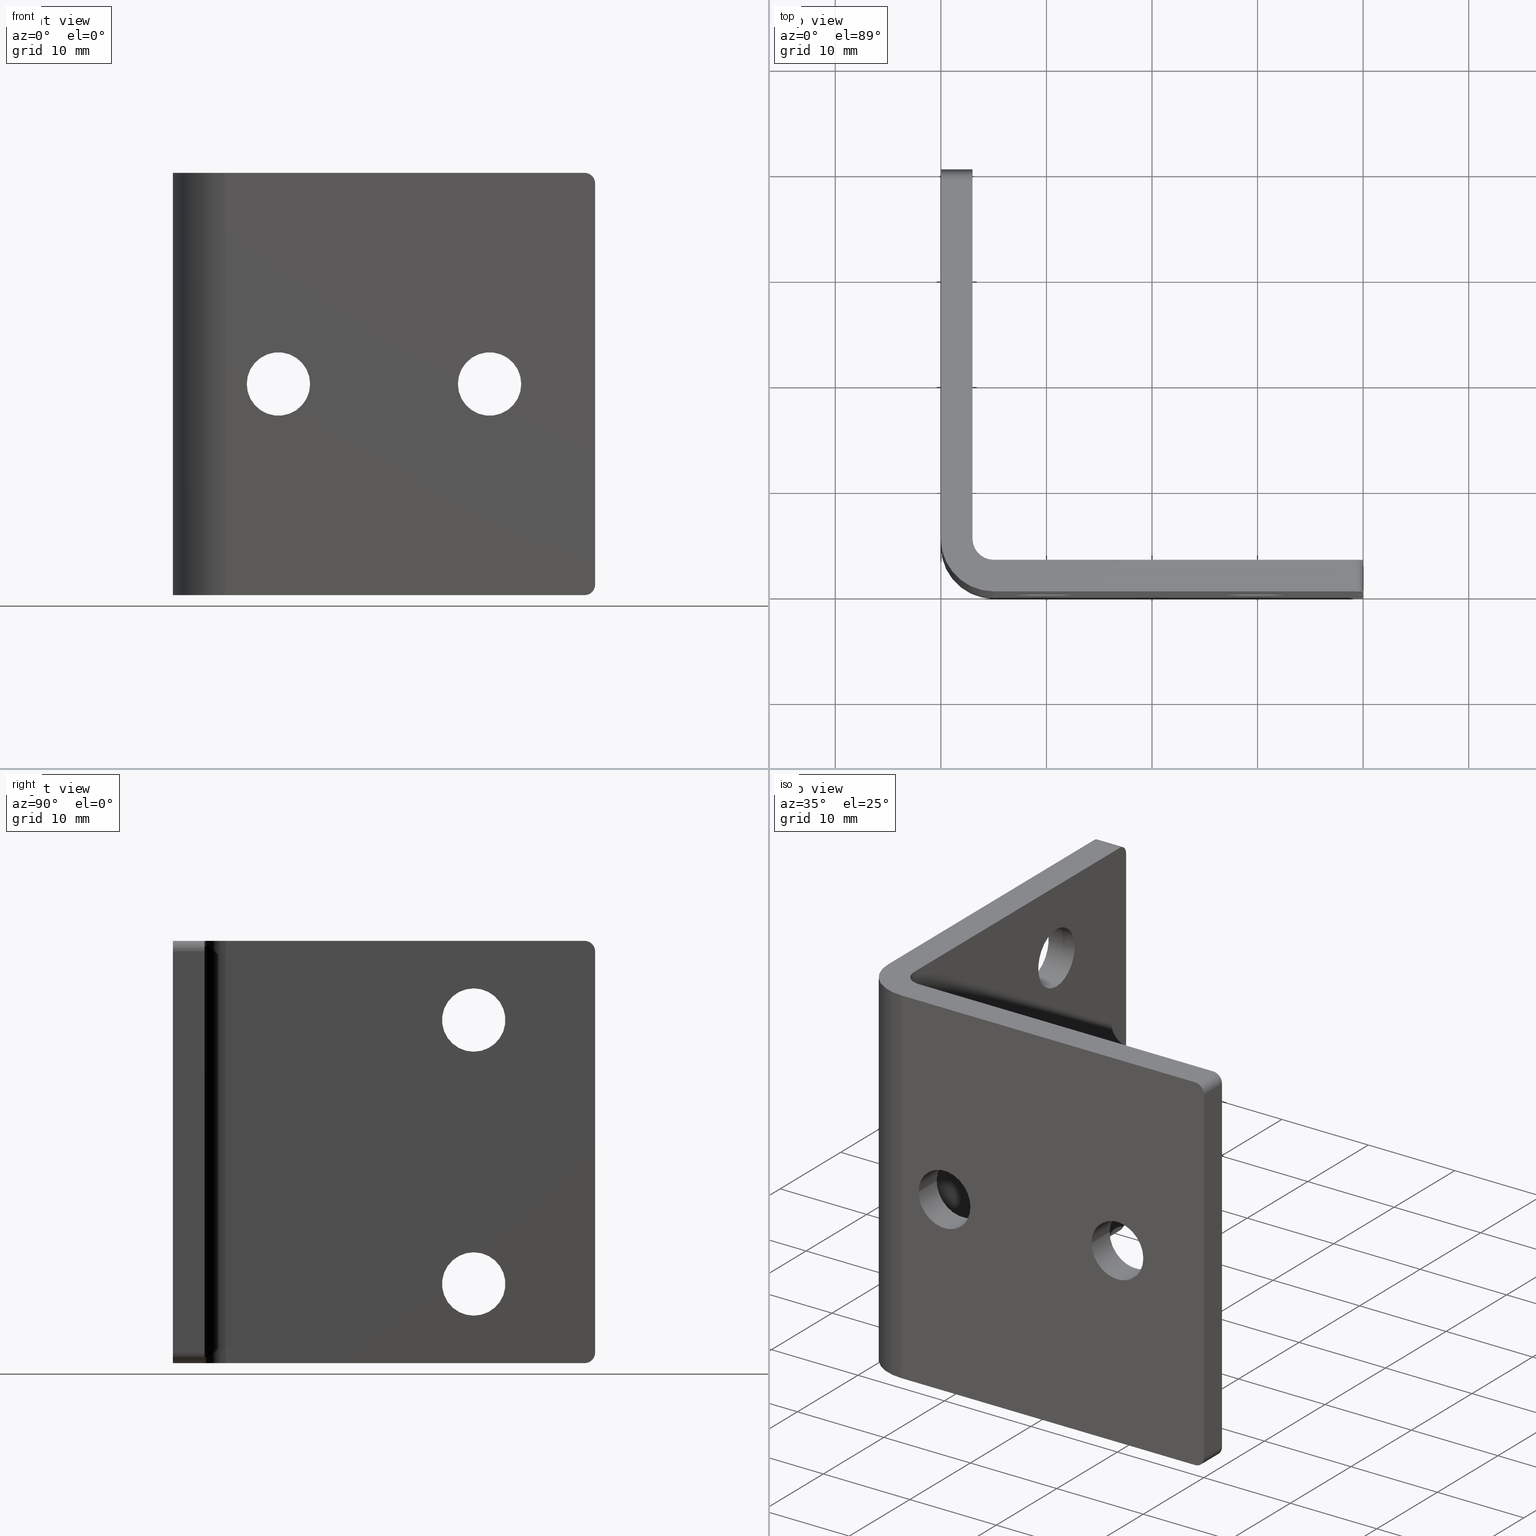
[diagram: canonical four-view strip — front | top / right | iso, engineering-drawing reading convention]
A machine part, canonical four-view strip (front | top / right | iso — engineering-drawing reading convention). The complete STEP part file that produces these views, byte-faithful:
ISO-10303-21;
HEADER;
/****************************************************************
 * Generated by software with PDE/Lib inside                    *
 * PDElib Version v4.4, created Mon 02/23/2004                  *
 * International Technegroup Inc. (www.iti-oh.com)              *
 ****************************************************************/
FILE_DESCRIPTION(('STEP AP203'),'2;1');
FILE_NAME('27.212.00.stp','2011-02-14T10:22:29',(''),(''),'2009.3.110','THINKDESIGN','');
FILE_SCHEMA(('CONFIG_CONTROL_DESIGN'));
ENDSEC;
DATA;
#2=CARTESIAN_POINT('',(-36.999999989999999,28.499999999999996,12.500000000000000));
#3=DIRECTION('',(-1.0,0.0,0.0));
#4=DIRECTION('',(0.0,1.0,0.0));
#5=AXIS2_PLACEMENT_3D('',#2,#3,#4);
#6=CYLINDRICAL_SURFACE('',#5,3.0);
#7=CARTESIAN_POINT('',(-36.999999999999986,28.500000000000000,9.500000000000004));
#8=VERTEX_POINT('',#7);
#9=CARTESIAN_POINT('',(-36.999999999999986,28.500000000000000,15.500000000000000));
#10=VERTEX_POINT('',#9);
#11=CARTESIAN_POINT('',(-36.999999999999986,28.500000000000000,12.500000000000000));
#12=DIRECTION('',(-1.0,0.0,0.0));
#13=DIRECTION('',(0.0,0.0,1.0));
#14=AXIS2_PLACEMENT_3D('',#11,#12,#13);
#15=CIRCLE('',#14,3.0);
#16=EDGE_CURVE('',#8,#10,#15,.T.);
#17=ORIENTED_EDGE('',*,*,#16,.F.);
#18=CARTESIAN_POINT('',(-39.999999999999986,28.500000000000000,9.500000000000004));
#19=VERTEX_POINT('',#18);
#20=CARTESIAN_POINT('',(-36.999999999999993,28.500000000000000,9.500000000000004));
#21=DIRECTION('',(-1.0,0.0,0.0));
#22=VECTOR('',#21,2.999999999999993);
#23=LINE('',#20,#22);
#24=EDGE_CURVE('',#8,#19,#23,.T.);
#25=ORIENTED_EDGE('',*,*,#24,.T.);
#26=CARTESIAN_POINT('',(-39.999999999999986,28.500000000000000,15.500000000000000));
#27=VERTEX_POINT('',#26);
#28=CARTESIAN_POINT('',(-39.999999999999986,28.500000000000000,12.500000000000000));
#29=DIRECTION('',(-1.0,0.0,0.0));
#30=DIRECTION('',(0.0,1.0,0.0));
#31=AXIS2_PLACEMENT_3D('',#28,#29,#30);
#32=CIRCLE('',#31,2.999999999999999);
#33=EDGE_CURVE('',#19,#27,#32,.T.);
#34=ORIENTED_EDGE('',*,*,#33,.T.);
#35=CARTESIAN_POINT('',(-36.999999999999993,28.500000000000000,15.500000000000000));
#36=DIRECTION('',(-1.0,0.0,0.0));
#37=VECTOR('',#36,2.999999999999993);
#38=LINE('',#35,#37);
#39=EDGE_CURVE('',#10,#27,#38,.T.);
#40=ORIENTED_EDGE('',*,*,#39,.F.);
#41=EDGE_LOOP('',(#17,#25,#34,#40));
#42=FACE_OUTER_BOUND('',#41,.T.);
#43=ADVANCED_FACE('',(#42),#6,.F.);
#44=CARTESIAN_POINT('',(-36.999999989999999,28.500000000000000,-12.500000000000000));
#45=DIRECTION('',(-1.0,0.0,0.0));
#46=DIRECTION('',(0.0,1.0,0.0));
#47=AXIS2_PLACEMENT_3D('',#44,#45,#46);
#48=CYLINDRICAL_SURFACE('',#47,2.999999999999999);
#49=CARTESIAN_POINT('',(-36.999999999999986,28.500000000000000,-15.500000000000014));
#50=VERTEX_POINT('',#49);
#51=CARTESIAN_POINT('',(-36.999999999999986,28.500000000000000,-9.500000000000011));
#52=VERTEX_POINT('',#51);
#53=CARTESIAN_POINT('',(-36.999999999999986,28.500000000000000,-12.500000000000000));
#54=DIRECTION('',(-1.0,0.0,0.0));
#55=DIRECTION('',(0.0,0.0,1.0));
#56=AXIS2_PLACEMENT_3D('',#53,#54,#55);
#57=CIRCLE('',#56,2.999999999999999);
#58=EDGE_CURVE('',#50,#52,#57,.T.);
#59=ORIENTED_EDGE('',*,*,#58,.F.);
#60=CARTESIAN_POINT('',(-39.999999999999986,28.500000000000000,-15.500000000000014));
#61=VERTEX_POINT('',#60);
#62=CARTESIAN_POINT('',(-36.999999999999993,28.500000000000000,-15.500000000000014));
#63=DIRECTION('',(-1.0,0.0,0.0));
#64=VECTOR('',#63,2.999999999999993);
#65=LINE('',#62,#64);
#66=EDGE_CURVE('',#50,#61,#65,.T.);
#67=ORIENTED_EDGE('',*,*,#66,.T.);
#68=CARTESIAN_POINT('',(-39.999999999999986,28.500000000000000,-9.500000000000011));
#69=VERTEX_POINT('',#68);
#70=CARTESIAN_POINT('',(-39.999999999999986,28.500000000000000,-12.500000000000000));
#71=DIRECTION('',(-1.0,0.0,0.0));
#72=DIRECTION('',(0.0,1.0,0.0));
#73=AXIS2_PLACEMENT_3D('',#70,#71,#72);
#74=CIRCLE('',#73,2.999999999999999);
#75=EDGE_CURVE('',#61,#69,#74,.T.);
#76=ORIENTED_EDGE('',*,*,#75,.T.);
#77=CARTESIAN_POINT('',(-36.999999999999993,28.500000000000000,-9.500000000000011));
#78=DIRECTION('',(-1.0,0.0,0.0));
#79=VECTOR('',#78,2.999999999999993);
#80=LINE('',#77,#79);
#81=EDGE_CURVE('',#52,#69,#80,.T.);
#82=ORIENTED_EDGE('',*,*,#81,.F.);
#83=EDGE_LOOP('',(#59,#67,#76,#82));
#84=FACE_OUTER_BOUND('',#83,.T.);
#85=ADVANCED_FACE('',(#84),#48,.F.);
#86=CARTESIAN_POINT('',(-29.999999999999979,3.000000009999989,0.0));
#87=DIRECTION('',(0.0,-1.0,0.0));
#88=DIRECTION('',(0.0,0.0,-1.0));
#89=AXIS2_PLACEMENT_3D('',#86,#87,#88);
#90=CYLINDRICAL_SURFACE('',#89,3.000000000000002);
#91=CARTESIAN_POINT('',(-26.999999999999993,2.999999999999989,0.0));
#92=VERTEX_POINT('',#91);
#93=CARTESIAN_POINT('',(-33.0,2.999999999999989,0.0));
#94=VERTEX_POINT('',#93);
#95=CARTESIAN_POINT('',(-29.999999999999986,2.999999999999989,0.0));
#96=DIRECTION('',(0.0,-1.0,0.0));
#97=DIRECTION('',(-1.0,0.0,0.0));
#98=AXIS2_PLACEMENT_3D('',#95,#96,#97);
#99=CIRCLE('',#98,3.000000000000002);
#100=EDGE_CURVE('',#92,#94,#99,.T.);
#101=ORIENTED_EDGE('',*,*,#100,.F.);
#102=CARTESIAN_POINT('',(-26.999999999999993,-7.105427E-015,0.0));
#103=VERTEX_POINT('',#102);
#104=CARTESIAN_POINT('',(-26.999999999999993,2.999999999999989,0.0));
#105=DIRECTION('',(0.0,-1.0,0.0));
#106=VECTOR('',#105,2.999999999999996);
#107=LINE('',#104,#106);
#108=EDGE_CURVE('',#92,#103,#107,.T.);
#109=ORIENTED_EDGE('',*,*,#108,.T.);
#110=CARTESIAN_POINT('',(-33.0,-7.105427E-015,0.0));
#111=VERTEX_POINT('',#110);
#112=CARTESIAN_POINT('',(-29.999999999999986,-7.105427E-015,0.0));
#113=DIRECTION('',(0.0,1.0,0.0));
#114=DIRECTION('',(-1.0,0.0,0.0));
#115=AXIS2_PLACEMENT_3D('',#112,#113,#114);
#116=CIRCLE('',#115,3.000000000000002);
#117=EDGE_CURVE('',#111,#103,#116,.T.);
#118=ORIENTED_EDGE('',*,*,#117,.F.);
#119=CARTESIAN_POINT('',(-33.0,2.999999999999989,0.0));
#120=DIRECTION('',(0.0,-1.0,0.0));
#121=VECTOR('',#120,2.999999999999996);
#122=LINE('',#119,#121);
#123=EDGE_CURVE('',#94,#111,#122,.T.);
#124=ORIENTED_EDGE('',*,*,#123,.F.);
#125=EDGE_LOOP('',(#101,#109,#118,#124));
#126=FACE_OUTER_BOUND('',#125,.T.);
#127=ADVANCED_FACE('',(#126),#90,.F.);
#128=CARTESIAN_POINT('',(-10.000000000000002,3.000000009999993,0.0));
#129=DIRECTION('',(0.0,-1.0,0.0));
#130=DIRECTION('',(0.0,0.0,-1.0));
#131=AXIS2_PLACEMENT_3D('',#128,#129,#130);
#132=CYLINDRICAL_SURFACE('',#131,2.999999999999999);
#133=CARTESIAN_POINT('',(-7.000000000000004,2.999999999999993,0.0));
#134=VERTEX_POINT('',#133);
#135=CARTESIAN_POINT('',(-12.999999999999998,2.999999999999993,0.0));
#136=VERTEX_POINT('',#135);
#137=CARTESIAN_POINT('',(-10.0,2.999999999999993,0.0));
#138=DIRECTION('',(0.0,-1.0,0.0));
#139=DIRECTION('',(-1.0,0.0,0.0));
#140=AXIS2_PLACEMENT_3D('',#137,#138,#139);
#141=CIRCLE('',#140,2.999999999999999);
#142=EDGE_CURVE('',#134,#136,#141,.T.);
#143=ORIENTED_EDGE('',*,*,#142,.F.);
#144=CARTESIAN_POINT('',(-7.000000000000004,0.0,0.0));
#145=VERTEX_POINT('',#144);
#146=CARTESIAN_POINT('',(-7.000000000000004,2.999999999999993,0.0));
#147=DIRECTION('',(0.0,-1.0,0.0));
#148=VECTOR('',#147,2.999999999999993);
#149=LINE('',#146,#148);
#150=EDGE_CURVE('',#134,#145,#149,.T.);
#151=ORIENTED_EDGE('',*,*,#150,.T.);
#152=CARTESIAN_POINT('',(-12.999999999999998,0.0,0.0));
#153=VERTEX_POINT('',#152);
#154=CARTESIAN_POINT('',(-10.0,0.0,0.0));
#155=DIRECTION('',(0.0,1.0,0.0));
#156=DIRECTION('',(-1.0,0.0,0.0));
#157=AXIS2_PLACEMENT_3D('',#154,#155,#156);
#158=CIRCLE('',#157,2.999999999999999);
#159=EDGE_CURVE('',#153,#145,#158,.T.);
#160=ORIENTED_EDGE('',*,*,#159,.F.);
#161=CARTESIAN_POINT('',(-12.999999999999998,2.999999999999993,0.0));
#162=DIRECTION('',(0.0,-1.0,0.0));
#163=VECTOR('',#162,2.999999999999993);
#164=LINE('',#161,#163);
#165=EDGE_CURVE('',#136,#153,#164,.T.);
#166=ORIENTED_EDGE('',*,*,#165,.F.);
#167=EDGE_LOOP('',(#143,#151,#160,#166));
#168=FACE_OUTER_BOUND('',#167,.T.);
#169=ADVANCED_FACE('',(#168),#132,.F.);
#170=CARTESIAN_POINT('',(-36.999999999999986,3.249999999999993,-22.0));
#171=DIRECTION('',(-1.0,0.0,0.0));
#172=DIRECTION('',(0.0,0.0,1.0));
#173=AXIS2_PLACEMENT_3D('',#170,#171,#172);
#174=PLANE('',#173);
#175=CARTESIAN_POINT('',(-36.999999999999986,39.0,20.0));
#176=VERTEX_POINT('',#175);
#177=CARTESIAN_POINT('',(-36.999999999999986,4.999999999999996,20.0));
#178=VERTEX_POINT('',#177);
#179=CARTESIAN_POINT('',(-36.999999999999986,39.0,20.0));
#180=DIRECTION('',(0.0,-1.0,0.0));
#181=VECTOR('',#180,34.0);
#182=LINE('',#179,#181);
#183=EDGE_CURVE('',#176,#178,#182,.T.);
#184=ORIENTED_EDGE('',*,*,#183,.T.);
#185=CARTESIAN_POINT('',(-36.999999999999986,4.999999999999996,-20.0));
#186=VERTEX_POINT('',#185);
#187=CARTESIAN_POINT('',(-36.999999999999986,4.999999999999993,20.0));
#188=DIRECTION('',(0.0,0.0,-1.0));
#189=VECTOR('',#188,40.0);
#190=LINE('',#187,#189);
#191=EDGE_CURVE('',#178,#186,#190,.T.);
#192=ORIENTED_EDGE('',*,*,#191,.T.);
#193=CARTESIAN_POINT('',(-36.999999999999986,39.0,-20.0));
#194=VERTEX_POINT('',#193);
#195=CARTESIAN_POINT('',(-36.999999999999986,39.0,-20.0));
#196=DIRECTION('',(0.0,-1.0,0.0));
#197=VECTOR('',#196,34.0);
#198=LINE('',#195,#197);
#199=EDGE_CURVE('',#194,#186,#198,.T.);
#200=ORIENTED_EDGE('',*,*,#199,.F.);
#201=CARTESIAN_POINT('',(-36.999999999999986,40.0,-19.0));
#202=VERTEX_POINT('',#201);
#203=CARTESIAN_POINT('',(-36.999999999999986,39.0,-19.0));
#204=DIRECTION('',(1.0,0.0,0.0));
#205=DIRECTION('',(0.0,0.0,1.0));
#206=AXIS2_PLACEMENT_3D('',#203,#204,#205);
#207=CIRCLE('',#206,1.000000000000001);
#208=EDGE_CURVE('',#194,#202,#207,.T.);
#209=ORIENTED_EDGE('',*,*,#208,.T.);
#210=CARTESIAN_POINT('',(-36.999999999999986,40.0,19.0));
#211=VERTEX_POINT('',#210);
#212=CARTESIAN_POINT('',(-36.999999999999986,40.0,-19.0));
#213=DIRECTION('',(0.0,0.0,1.0));
#214=VECTOR('',#213,38.0);
#215=LINE('',#212,#214);
#216=EDGE_CURVE('',#202,#211,#215,.T.);
#217=ORIENTED_EDGE('',*,*,#216,.T.);
#218=CARTESIAN_POINT('',(-36.999999999999986,39.0,19.0));
#219=DIRECTION('',(1.0,0.0,0.0));
#220=DIRECTION('',(0.0,0.0,1.0));
#221=AXIS2_PLACEMENT_3D('',#218,#219,#220);
#222=CIRCLE('',#221,1.0);
#223=EDGE_CURVE('',#211,#176,#222,.T.);
#224=ORIENTED_EDGE('',*,*,#223,.T.);
#225=EDGE_LOOP('',(#184,#192,#200,#209,#217,#224));
#226=FACE_OUTER_BOUND('',#225,.T.);
#227=CARTESIAN_POINT('',(-36.999999999999986,28.500000000000000,-12.500000000000000));
#228=DIRECTION('',(-1.0,0.0,0.0));
#229=DIRECTION('',(0.0,0.0,1.0));
#230=AXIS2_PLACEMENT_3D('',#227,#228,#229);
#231=CIRCLE('',#230,2.999999999999999);
#232=EDGE_CURVE('',#52,#50,#231,.T.);
#233=ORIENTED_EDGE('',*,*,#232,.T.);
#234=ORIENTED_EDGE('',*,*,#58,.T.);
#235=EDGE_LOOP('',(#233,#234));
#236=FACE_BOUND('',#235,.T.);
#237=CARTESIAN_POINT('',(-36.999999999999986,28.500000000000000,12.500000000000000));
#238=DIRECTION('',(-1.0,0.0,0.0));
#239=DIRECTION('',(0.0,0.0,1.0));
#240=AXIS2_PLACEMENT_3D('',#237,#238,#239);
#241=CIRCLE('',#240,3.0);
#242=EDGE_CURVE('',#10,#8,#241,.T.);
#243=ORIENTED_EDGE('',*,*,#242,.T.);
#244=ORIENTED_EDGE('',*,*,#16,.T.);
#245=EDGE_LOOP('',(#243,#244));
#246=FACE_BOUND('',#245,.T.);
#247=ADVANCED_FACE('',(#226,#236,#246),#174,.F.);
#248=CARTESIAN_POINT('',(-36.749999999999986,2.999999999999993,-22.0));
#249=DIRECTION('',(0.0,-1.0,0.0));
#250=DIRECTION('',(1.0,0.0,0.0));
#251=AXIS2_PLACEMENT_3D('',#248,#249,#250);
#252=PLANE('',#251);
#253=CARTESIAN_POINT('',(-34.999999999999986,2.999999999999993,-20.0));
#254=VERTEX_POINT('',#253);
#255=CARTESIAN_POINT('',(-0.999999999999995,3.0,-20.0));
#256=VERTEX_POINT('',#255);
#257=CARTESIAN_POINT('',(-34.999999999999986,2.999999999999993,-20.0));
#258=DIRECTION('',(1.0,0.0,0.0));
#259=VECTOR('',#258,33.999999999999993);
#260=LINE('',#257,#259);
#261=EDGE_CURVE('',#254,#256,#260,.T.);
#262=ORIENTED_EDGE('',*,*,#261,.F.);
#263=CARTESIAN_POINT('',(-34.999999999999986,2.999999999999993,20.0));
#264=VERTEX_POINT('',#263);
#265=CARTESIAN_POINT('',(-34.999999999999986,2.999999999999993,-20.0));
#266=DIRECTION('',(0.0,0.0,1.0));
#267=VECTOR('',#266,40.0);
#268=LINE('',#265,#267);
#269=EDGE_CURVE('',#254,#264,#268,.T.);
#270=ORIENTED_EDGE('',*,*,#269,.T.);
#271=CARTESIAN_POINT('',(-0.999999999999995,3.0,20.0));
#272=VERTEX_POINT('',#271);
#273=CARTESIAN_POINT('',(-34.999999999999986,2.999999999999993,20.0));
#274=DIRECTION('',(1.0,0.0,0.0));
#275=VECTOR('',#274,33.999999999999993);
#276=LINE('',#273,#275);
#277=EDGE_CURVE('',#264,#272,#276,.T.);
#278=ORIENTED_EDGE('',*,*,#277,.T.);
#279=CARTESIAN_POINT('',(3.552714E-015,3.0,19.0));
#280=VERTEX_POINT('',#279);
#281=CARTESIAN_POINT('',(-0.999999999999995,3.0,19.0));
#282=DIRECTION('',(0.0,1.0,0.0));
#283=DIRECTION('',(1.0,0.0,0.0));
#284=AXIS2_PLACEMENT_3D('',#281,#282,#283);
#285=CIRCLE('',#284,1.0);
#286=EDGE_CURVE('',#272,#280,#285,.T.);
#287=ORIENTED_EDGE('',*,*,#286,.T.);
#288=CARTESIAN_POINT('',(3.552714E-015,3.0,-19.0));
#289=VERTEX_POINT('',#288);
#290=CARTESIAN_POINT('',(3.552714E-015,3.0,-19.0));
#291=DIRECTION('',(0.0,0.0,1.0));
#292=VECTOR('',#291,38.0);
#293=LINE('',#290,#292);
#294=EDGE_CURVE('',#289,#280,#293,.T.);
#295=ORIENTED_EDGE('',*,*,#294,.F.);
#296=CARTESIAN_POINT('',(-0.999999999999993,3.0,-19.0));
#297=DIRECTION('',(0.0,1.0,0.0));
#298=DIRECTION('',(1.0,0.0,0.0));
#299=AXIS2_PLACEMENT_3D('',#296,#297,#298);
#300=CIRCLE('',#299,1.0);
#301=EDGE_CURVE('',#289,#256,#300,.T.);
#302=ORIENTED_EDGE('',*,*,#301,.T.);
#303=EDGE_LOOP('',(#262,#270,#278,#287,#295,#302));
#304=FACE_OUTER_BOUND('',#303,.T.);
#305=CARTESIAN_POINT('',(-10.0,2.999999999999993,0.0));
#306=DIRECTION('',(0.0,-1.0,0.0));
#307=DIRECTION('',(-1.0,0.0,0.0));
#308=AXIS2_PLACEMENT_3D('',#305,#306,#307);
#309=CIRCLE('',#308,2.999999999999999);
#310=EDGE_CURVE('',#136,#134,#309,.T.);
#311=ORIENTED_EDGE('',*,*,#310,.T.);
#312=ORIENTED_EDGE('',*,*,#142,.T.);
#313=EDGE_LOOP('',(#311,#312));
#314=FACE_BOUND('',#313,.T.);
#315=CARTESIAN_POINT('',(-29.999999999999986,2.999999999999989,0.0));
#316=DIRECTION('',(0.0,-1.0,0.0));
#317=DIRECTION('',(-1.0,0.0,0.0));
#318=AXIS2_PLACEMENT_3D('',#315,#316,#317);
#319=CIRCLE('',#318,3.000000000000002);
#320=EDGE_CURVE('',#94,#92,#319,.T.);
#321=ORIENTED_EDGE('',*,*,#320,.T.);
#322=ORIENTED_EDGE('',*,*,#100,.T.);
#323=EDGE_LOOP('',(#321,#322));
#324=FACE_BOUND('',#323,.T.);
#325=ADVANCED_FACE('',(#304,#314,#324),#252,.F.);
#326=CARTESIAN_POINT('',(0.0,3.149999999999999,-20.899999999999999));
#327=DIRECTION('',(-1.0,0.0,0.0));
#328=DIRECTION('',(0.0,-1.0,0.0));
#329=AXIS2_PLACEMENT_3D('',#326,#327,#328);
#330=PLANE('',#329);
#331=ORIENTED_EDGE('',*,*,#294,.T.);
#332=CARTESIAN_POINT('',(0.0,0.0,19.0));
#333=VERTEX_POINT('',#332);
#334=CARTESIAN_POINT('',(0.0,3.0,19.0));
#335=DIRECTION('',(0.0,-1.0,0.0));
#336=VECTOR('',#335,3.0);
#337=LINE('',#334,#336);
#338=EDGE_CURVE('',#280,#333,#337,.T.);
#339=ORIENTED_EDGE('',*,*,#338,.T.);
#340=CARTESIAN_POINT('',(0.0,0.0,-19.0));
#341=VERTEX_POINT('',#340);
#342=CARTESIAN_POINT('',(0.0,0.0,-19.0));
#343=DIRECTION('',(0.0,0.0,1.0));
#344=VECTOR('',#343,38.0);
#345=LINE('',#342,#344);
#346=EDGE_CURVE('',#341,#333,#345,.T.);
#347=ORIENTED_EDGE('',*,*,#346,.F.);
#348=CARTESIAN_POINT('',(0.0,0.0,-19.0));
#349=DIRECTION('',(0.0,1.0,0.0));
#350=VECTOR('',#349,3.0);
#351=LINE('',#348,#350);
#352=EDGE_CURVE('',#341,#289,#351,.T.);
#353=ORIENTED_EDGE('',*,*,#352,.T.);
#354=EDGE_LOOP('',(#331,#339,#347,#353));
#355=FACE_OUTER_BOUND('',#354,.T.);
#356=ADVANCED_FACE('',(#355),#330,.F.);
#357=CARTESIAN_POINT('',(1.750000000000005,-7.105427E-015,-22.0));
#358=DIRECTION('',(0.0,1.0,0.0));
#359=DIRECTION('',(-1.0,0.0,0.0));
#360=AXIS2_PLACEMENT_3D('',#357,#358,#359);
#361=PLANE('',#360);
#362=CARTESIAN_POINT('',(-0.999999999999995,0.0,20.0));
#363=VERTEX_POINT('',#362);
#364=CARTESIAN_POINT('',(-35.0,-7.105427E-015,20.0));
#365=VERTEX_POINT('',#364);
#366=CARTESIAN_POINT('',(-1.000000000000002,-7.105427E-015,20.0));
#367=DIRECTION('',(-1.0,0.0,0.0));
#368=VECTOR('',#367,34.0);
#369=LINE('',#366,#368);
#370=EDGE_CURVE('',#363,#365,#369,.T.);
#371=ORIENTED_EDGE('',*,*,#370,.T.);
#372=CARTESIAN_POINT('',(-35.0,-7.105427E-015,-20.0));
#373=VERTEX_POINT('',#372);
#374=CARTESIAN_POINT('',(-35.0,-7.105427E-015,20.0));
#375=DIRECTION('',(0.0,0.0,-1.0));
#376=VECTOR('',#375,40.0);
#377=LINE('',#374,#376);
#378=EDGE_CURVE('',#365,#373,#377,.T.);
#379=ORIENTED_EDGE('',*,*,#378,.T.);
#380=CARTESIAN_POINT('',(-0.999999999999995,0.0,-20.0));
#381=VERTEX_POINT('',#380);
#382=CARTESIAN_POINT('',(-1.000000000000002,-7.105427E-015,-20.0));
#383=DIRECTION('',(-1.0,0.0,0.0));
#384=VECTOR('',#383,34.0);
#385=LINE('',#382,#384);
#386=EDGE_CURVE('',#381,#373,#385,.T.);
#387=ORIENTED_EDGE('',*,*,#386,.F.);
#388=CARTESIAN_POINT('',(-0.999999999999995,0.0,-19.0));
#389=DIRECTION('',(0.0,-1.0,0.0));
#390=DIRECTION('',(-1.0,0.0,0.0));
#391=AXIS2_PLACEMENT_3D('',#388,#389,#390);
#392=CIRCLE('',#391,1.000000000000001);
#393=EDGE_CURVE('',#381,#341,#392,.T.);
#394=ORIENTED_EDGE('',*,*,#393,.T.);
#395=ORIENTED_EDGE('',*,*,#346,.T.);
#396=CARTESIAN_POINT('',(-1.0,0.0,19.0));
#397=DIRECTION('',(0.0,-1.0,0.0));
#398=DIRECTION('',(-1.0,0.0,0.0));
#399=AXIS2_PLACEMENT_3D('',#396,#397,#398);
#400=CIRCLE('',#399,0.999999999999999);
#401=EDGE_CURVE('',#333,#363,#400,.T.);
#402=ORIENTED_EDGE('',*,*,#401,.T.);
#403=EDGE_LOOP('',(#371,#379,#387,#394,#395,#402));
#404=FACE_OUTER_BOUND('',#403,.T.);
#405=ORIENTED_EDGE('',*,*,#159,.T.);
#406=CARTESIAN_POINT('',(-10.0,0.0,0.0));
#407=DIRECTION('',(0.0,1.0,0.0));
#408=DIRECTION('',(-1.0,0.0,0.0));
#409=AXIS2_PLACEMENT_3D('',#406,#407,#408);
#410=CIRCLE('',#409,2.999999999999999);
#411=EDGE_CURVE('',#145,#153,#410,.T.);
#412=ORIENTED_EDGE('',*,*,#411,.T.);
#413=EDGE_LOOP('',(#405,#412));
#414=FACE_BOUND('',#413,.T.);
#415=ORIENTED_EDGE('',*,*,#117,.T.);
#416=CARTESIAN_POINT('',(-29.999999999999986,-7.105427E-015,0.0));
#417=DIRECTION('',(0.0,1.0,0.0));
#418=DIRECTION('',(-1.0,0.0,0.0));
#419=AXIS2_PLACEMENT_3D('',#416,#417,#418);
#420=CIRCLE('',#419,3.000000000000002);
#421=EDGE_CURVE('',#103,#111,#420,.T.);
#422=ORIENTED_EDGE('',*,*,#421,.T.);
#423=EDGE_LOOP('',(#415,#422));
#424=FACE_BOUND('',#423,.T.);
#425=ADVANCED_FACE('',(#404,#414,#424),#361,.F.);
#426=CARTESIAN_POINT('',(-39.999999999999986,3.250000000000000,22.0));
#427=DIRECTION('',(1.0,0.0,0.0));
#428=DIRECTION('',(0.0,0.0,-1.0));
#429=AXIS2_PLACEMENT_3D('',#426,#427,#428);
#430=PLANE('',#429);
#431=CARTESIAN_POINT('',(-39.999999999999986,4.999999999999996,-20.0));
#432=VERTEX_POINT('',#431);
#433=CARTESIAN_POINT('',(-39.999999999999986,39.0,-20.0));
#434=VERTEX_POINT('',#433);
#435=CARTESIAN_POINT('',(-39.999999999999986,5.0,-20.0));
#436=DIRECTION('',(0.0,1.0,0.0));
#437=VECTOR('',#436,34.0);
#438=LINE('',#435,#437);
#439=EDGE_CURVE('',#432,#434,#438,.T.);
#440=ORIENTED_EDGE('',*,*,#439,.F.);
#441=CARTESIAN_POINT('',(-39.999999999999986,4.999999999999996,20.0));
#442=VERTEX_POINT('',#441);
#443=CARTESIAN_POINT('',(-39.999999999999986,4.999999999999996,-20.0));
#444=DIRECTION('',(0.0,0.0,1.0));
#445=VECTOR('',#444,40.0);
#446=LINE('',#443,#445);
#447=EDGE_CURVE('',#432,#442,#446,.T.);
#448=ORIENTED_EDGE('',*,*,#447,.T.);
#449=CARTESIAN_POINT('',(-39.999999999999986,39.0,20.0));
#450=VERTEX_POINT('',#449);
#451=CARTESIAN_POINT('',(-39.999999999999986,5.0,20.0));
#452=DIRECTION('',(0.0,1.0,0.0));
#453=VECTOR('',#452,34.0);
#454=LINE('',#451,#453);
#455=EDGE_CURVE('',#442,#450,#454,.T.);
#456=ORIENTED_EDGE('',*,*,#455,.T.);
#457=CARTESIAN_POINT('',(-39.999999999999986,40.0,19.0));
#458=VERTEX_POINT('',#457);
#459=CARTESIAN_POINT('',(-39.999999999999986,39.0,19.0));
#460=DIRECTION('',(-1.0,0.0,0.0));
#461=DIRECTION('',(0.0,0.0,-1.0));
#462=AXIS2_PLACEMENT_3D('',#459,#460,#461);
#463=CIRCLE('',#462,1.0);
#464=EDGE_CURVE('',#450,#458,#463,.T.);
#465=ORIENTED_EDGE('',*,*,#464,.T.);
#466=CARTESIAN_POINT('',(-39.999999999999986,40.0,-19.0));
#467=VERTEX_POINT('',#466);
#468=CARTESIAN_POINT('',(-39.999999999999986,40.0,-19.0));
#469=DIRECTION('',(0.0,0.0,1.0));
#470=VECTOR('',#469,38.0);
#471=LINE('',#468,#470);
#472=EDGE_CURVE('',#467,#458,#471,.T.);
#473=ORIENTED_EDGE('',*,*,#472,.F.);
#474=CARTESIAN_POINT('',(-39.999999999999986,39.0,-19.0));
#475=DIRECTION('',(-1.0,0.0,0.0));
#476=DIRECTION('',(0.0,0.0,-1.0));
#477=AXIS2_PLACEMENT_3D('',#474,#475,#476);
#478=CIRCLE('',#477,1.000000000000001);
#479=EDGE_CURVE('',#467,#434,#478,.T.);
#480=ORIENTED_EDGE('',*,*,#479,.T.);
#481=EDGE_LOOP('',(#440,#448,#456,#465,#473,#480));
#482=FACE_OUTER_BOUND('',#481,.T.);
#483=CARTESIAN_POINT('',(-39.999999999999986,28.500000000000000,-12.500000000000000));
#484=DIRECTION('',(-1.0,0.0,0.0));
#485=DIRECTION('',(0.0,1.0,0.0));
#486=AXIS2_PLACEMENT_3D('',#483,#484,#485);
#487=CIRCLE('',#486,2.999999999999999);
#488=EDGE_CURVE('',#69,#61,#487,.T.);
#489=ORIENTED_EDGE('',*,*,#488,.F.);
#490=ORIENTED_EDGE('',*,*,#75,.F.);
#491=EDGE_LOOP('',(#489,#490));
#492=FACE_BOUND('',#491,.T.);
#493=CARTESIAN_POINT('',(-39.999999999999986,28.500000000000000,12.500000000000000));
#494=DIRECTION('',(-1.0,0.0,0.0));
#495=DIRECTION('',(0.0,1.0,0.0));
#496=AXIS2_PLACEMENT_3D('',#493,#494,#495);
#497=CIRCLE('',#496,2.999999999999999);
#498=EDGE_CURVE('',#27,#19,#497,.T.);
#499=ORIENTED_EDGE('',*,*,#498,.F.);
#500=ORIENTED_EDGE('',*,*,#33,.F.);
#501=EDGE_LOOP('',(#499,#500));
#502=FACE_BOUND('',#501,.T.);
#503=ADVANCED_FACE('',(#482,#492,#502),#430,.F.);
#504=CARTESIAN_POINT('',(-40.149999999999984,40.0,20.899999999999999));
#505=DIRECTION('',(0.0,-1.0,0.0));
#506=DIRECTION('',(0.0,0.0,-1.0));
#507=AXIS2_PLACEMENT_3D('',#504,#505,#506);
#508=PLANE('',#507);
#509=ORIENTED_EDGE('',*,*,#472,.T.);
#510=CARTESIAN_POINT('',(-39.999999999999986,40.0,19.0));
#511=DIRECTION('',(1.0,0.0,0.0));
#512=VECTOR('',#511,3.0);
#513=LINE('',#510,#512);
#514=EDGE_CURVE('',#458,#211,#513,.T.);
#515=ORIENTED_EDGE('',*,*,#514,.T.);
#516=ORIENTED_EDGE('',*,*,#216,.F.);
#517=CARTESIAN_POINT('',(-36.999999999999986,40.0,-19.0));
#518=DIRECTION('',(-1.0,0.0,0.0));
#519=VECTOR('',#518,3.0);
#520=LINE('',#517,#519);
#521=EDGE_CURVE('',#202,#467,#520,.T.);
#522=ORIENTED_EDGE('',*,*,#521,.T.);
#523=EDGE_LOOP('',(#509,#515,#516,#522));
#524=FACE_OUTER_BOUND('',#523,.T.);
#525=ADVANCED_FACE('',(#524),#508,.F.);
#526=CARTESIAN_POINT('',(-41.950000000000003,-1.950000000000010,-20.0));
#527=DIRECTION('',(0.0,0.0,1.0));
#528=DIRECTION('',(1.0,0.0,0.0));
#529=AXIS2_PLACEMENT_3D('',#526,#527,#528);
#530=PLANE('',#529);
#531=ORIENTED_EDGE('',*,*,#386,.T.);
#532=CARTESIAN_POINT('',(-35.0,4.999999999999996,-20.0));
#533=DIRECTION('',(0.0,0.0,-1.0));
#534=DIRECTION('',(1.0,0.0,0.0));
#535=AXIS2_PLACEMENT_3D('',#532,#533,#534);
#536=CIRCLE('',#535,4.999999999999997);
#537=EDGE_CURVE('',#373,#432,#536,.T.);
#538=ORIENTED_EDGE('',*,*,#537,.T.);
#539=ORIENTED_EDGE('',*,*,#439,.T.);
#540=CARTESIAN_POINT('',(-39.999999999999986,39.0,-20.0));
#541=DIRECTION('',(1.0,0.0,0.0));
#542=VECTOR('',#541,3.0);
#543=LINE('',#540,#542);
#544=EDGE_CURVE('',#434,#194,#543,.T.);
#545=ORIENTED_EDGE('',*,*,#544,.T.);
#546=ORIENTED_EDGE('',*,*,#199,.T.);
#547=CARTESIAN_POINT('',(-34.999999999999986,4.999999999999993,-20.0));
#548=DIRECTION('',(0.0,0.0,1.0));
#549=DIRECTION('',(1.0,0.0,0.0));
#550=AXIS2_PLACEMENT_3D('',#547,#548,#549);
#551=CIRCLE('',#550,2.000000000000001);
#552=EDGE_CURVE('',#186,#254,#551,.T.);
#553=ORIENTED_EDGE('',*,*,#552,.T.);
#554=ORIENTED_EDGE('',*,*,#261,.T.);
#555=CARTESIAN_POINT('',(-0.999999999999962,2.999999999999996,-20.0));
#556=DIRECTION('',(0.0,-1.0,0.0));
#557=VECTOR('',#556,2.999999999999996);
#558=LINE('',#555,#557);
#559=EDGE_CURVE('',#256,#381,#558,.T.);
#560=ORIENTED_EDGE('',*,*,#559,.T.);
#561=EDGE_LOOP('',(#531,#538,#539,#545,#546,#553,#554,#560));
#562=FACE_OUTER_BOUND('',#561,.T.);
#563=ADVANCED_FACE('',(#562),#530,.F.);
#564=CARTESIAN_POINT('',(-41.950000000000003,-1.950000000000010,20.0));
#565=DIRECTION('',(0.0,0.0,1.0));
#566=DIRECTION('',(1.0,0.0,0.0));
#567=AXIS2_PLACEMENT_3D('',#564,#565,#566);
#568=PLANE('',#567);
#569=ORIENTED_EDGE('',*,*,#455,.F.);
#570=CARTESIAN_POINT('',(-35.0,4.999999999999996,20.0));
#571=DIRECTION('',(0.0,0.0,1.0));
#572=DIRECTION('',(1.0,0.0,0.0));
#573=AXIS2_PLACEMENT_3D('',#570,#571,#572);
#574=CIRCLE('',#573,4.999999999999997);
#575=EDGE_CURVE('',#442,#365,#574,.T.);
#576=ORIENTED_EDGE('',*,*,#575,.T.);
#577=ORIENTED_EDGE('',*,*,#370,.F.);
#578=CARTESIAN_POINT('',(-0.999999999999995,0.0,20.0));
#579=DIRECTION('',(0.0,1.0,0.0));
#580=VECTOR('',#579,3.0);
#581=LINE('',#578,#580);
#582=EDGE_CURVE('',#363,#272,#581,.T.);
#583=ORIENTED_EDGE('',*,*,#582,.T.);
#584=ORIENTED_EDGE('',*,*,#277,.F.);
#585=CARTESIAN_POINT('',(-34.999999999999986,4.999999999999993,20.0));
#586=DIRECTION('',(0.0,0.0,-1.0));
#587=DIRECTION('',(1.0,0.0,0.0));
#588=AXIS2_PLACEMENT_3D('',#585,#586,#587);
#589=CIRCLE('',#588,2.000000000000001);
#590=EDGE_CURVE('',#264,#178,#589,.T.);
#591=ORIENTED_EDGE('',*,*,#590,.T.);
#592=ORIENTED_EDGE('',*,*,#183,.F.);
#593=CARTESIAN_POINT('',(-36.999999999999986,39.0,20.0));
#594=DIRECTION('',(-1.0,0.0,0.0));
#595=VECTOR('',#594,3.0);
#596=LINE('',#593,#595);
#597=EDGE_CURVE('',#176,#450,#596,.T.);
#598=ORIENTED_EDGE('',*,*,#597,.T.);
#599=EDGE_LOOP('',(#569,#576,#577,#583,#584,#591,#592,#598));
#600=FACE_OUTER_BOUND('',#599,.T.);
#601=ADVANCED_FACE('',(#600),#568,.T.);
#602=CARTESIAN_POINT('',(-10.0,3.000000009999993,3.552714E-015));
#603=DIRECTION('',(0.0,-1.0,0.0));
#604=DIRECTION('',(0.0,0.0,1.0));
#605=AXIS2_PLACEMENT_3D('',#602,#603,#604);
#606=CYLINDRICAL_SURFACE('',#605,2.999999999999999);
#607=ORIENTED_EDGE('',*,*,#150,.F.);
#608=ORIENTED_EDGE('',*,*,#310,.F.);
#609=ORIENTED_EDGE('',*,*,#165,.T.);
#610=ORIENTED_EDGE('',*,*,#411,.F.);
#611=EDGE_LOOP('',(#607,#608,#609,#610));
#612=FACE_OUTER_BOUND('',#611,.T.);
#613=ADVANCED_FACE('',(#612),#606,.F.);
#614=CARTESIAN_POINT('',(-29.999999999999986,3.000000009999989,0.0));
#615=DIRECTION('',(0.0,-1.0,0.0));
#616=DIRECTION('',(0.0,0.0,1.0));
#617=AXIS2_PLACEMENT_3D('',#614,#615,#616);
#618=CYLINDRICAL_SURFACE('',#617,3.000000000000002);
#619=ORIENTED_EDGE('',*,*,#108,.F.);
#620=ORIENTED_EDGE('',*,*,#320,.F.);
#621=ORIENTED_EDGE('',*,*,#123,.T.);
#622=ORIENTED_EDGE('',*,*,#421,.F.);
#623=EDGE_LOOP('',(#619,#620,#621,#622));
#624=FACE_OUTER_BOUND('',#623,.T.);
#625=ADVANCED_FACE('',(#624),#618,.F.);
#626=CARTESIAN_POINT('',(-36.999999989999999,28.500000000000000,-12.500000000000000));
#627=DIRECTION('',(-1.0,0.0,0.0));
#628=DIRECTION('',(0.0,-1.0,0.0));
#629=AXIS2_PLACEMENT_3D('',#626,#627,#628);
#630=CYLINDRICAL_SURFACE('',#629,2.999999999999999);
#631=ORIENTED_EDGE('',*,*,#66,.F.);
#632=ORIENTED_EDGE('',*,*,#232,.F.);
#633=ORIENTED_EDGE('',*,*,#81,.T.);
#634=ORIENTED_EDGE('',*,*,#488,.T.);
#635=EDGE_LOOP('',(#631,#632,#633,#634));
#636=FACE_OUTER_BOUND('',#635,.T.);
#637=ADVANCED_FACE('',(#636),#630,.F.);
#638=CARTESIAN_POINT('',(-36.999999989999999,28.500000000000000,12.499999999999998));
#639=DIRECTION('',(-1.0,0.0,0.0));
#640=DIRECTION('',(0.0,-1.0,0.0));
#641=AXIS2_PLACEMENT_3D('',#638,#639,#640);
#642=CYLINDRICAL_SURFACE('',#641,3.0);
#643=ORIENTED_EDGE('',*,*,#24,.F.);
#644=ORIENTED_EDGE('',*,*,#242,.F.);
#645=ORIENTED_EDGE('',*,*,#39,.T.);
#646=ORIENTED_EDGE('',*,*,#498,.T.);
#647=EDGE_LOOP('',(#643,#644,#645,#646));
#648=FACE_OUTER_BOUND('',#647,.T.);
#649=ADVANCED_FACE('',(#648),#642,.F.);
#650=CARTESIAN_POINT('',(-40.000000009999987,39.0,-19.0));
#651=DIRECTION('',(1.0,0.0,0.0));
#652=DIRECTION('',(0.0,-0.707106781186548,0.707106781186547));
#653=AXIS2_PLACEMENT_3D('',#650,#651,#652);
#654=CYLINDRICAL_SURFACE('',#653,1.000000000000001);
#655=ORIENTED_EDGE('',*,*,#479,.F.);
#656=ORIENTED_EDGE('',*,*,#521,.F.);
#657=ORIENTED_EDGE('',*,*,#208,.F.);
#658=ORIENTED_EDGE('',*,*,#544,.F.);
#659=EDGE_LOOP('',(#655,#656,#657,#658));
#660=FACE_OUTER_BOUND('',#659,.T.);
#661=ADVANCED_FACE('',(#660),#654,.T.);
#662=CARTESIAN_POINT('',(-0.999999999999959,3.000000010000001,-19.0));
#663=DIRECTION('',(0.0,-1.0,0.0));
#664=DIRECTION('',(-0.707106781186547,0.0,0.707106781186548));
#665=AXIS2_PLACEMENT_3D('',#662,#663,#664);
#666=CYLINDRICAL_SURFACE('',#665,1.0);
#667=ORIENTED_EDGE('',*,*,#301,.F.);
#668=ORIENTED_EDGE('',*,*,#352,.F.);
#669=ORIENTED_EDGE('',*,*,#393,.F.);
#670=ORIENTED_EDGE('',*,*,#559,.F.);
#671=EDGE_LOOP('',(#667,#668,#669,#670));
#672=FACE_OUTER_BOUND('',#671,.T.);
#673=ADVANCED_FACE('',(#672),#666,.T.);
#674=CARTESIAN_POINT('',(-1.0,-1.000000E-008,19.0));
#675=DIRECTION('',(0.0,1.0,0.0));
#676=DIRECTION('',(-1.0,0.0,0.0));
#677=AXIS2_PLACEMENT_3D('',#674,#675,#676);
#678=CYLINDRICAL_SURFACE('',#677,0.999999999999999);
#679=ORIENTED_EDGE('',*,*,#286,.F.);
#680=ORIENTED_EDGE('',*,*,#582,.F.);
#681=ORIENTED_EDGE('',*,*,#401,.F.);
#682=ORIENTED_EDGE('',*,*,#338,.F.);
#683=EDGE_LOOP('',(#679,#680,#681,#682));
#684=FACE_OUTER_BOUND('',#683,.T.);
#685=ADVANCED_FACE('',(#684),#678,.T.);
#686=CARTESIAN_POINT('',(-36.999999989999985,39.0,19.0));
#687=DIRECTION('',(-1.0,0.0,0.0));
#688=DIRECTION('',(0.0,-0.707106781186548,-0.707106781186547));
#689=AXIS2_PLACEMENT_3D('',#686,#687,#688);
#690=CYLINDRICAL_SURFACE('',#689,1.0);
#691=ORIENTED_EDGE('',*,*,#464,.F.);
#692=ORIENTED_EDGE('',*,*,#597,.F.);
#693=ORIENTED_EDGE('',*,*,#223,.F.);
#694=ORIENTED_EDGE('',*,*,#514,.F.);
#695=EDGE_LOOP('',(#691,#692,#693,#694));
#696=FACE_OUTER_BOUND('',#695,.T.);
#697=ADVANCED_FACE('',(#696),#690,.T.);
#698=CARTESIAN_POINT('',(-34.999999999999986,4.999999999999993,20.000000010000001));
#699=DIRECTION('',(0.0,0.0,-1.0));
#700=DIRECTION('',(0.707106781186547,0.707106781186548,0.0));
#701=AXIS2_PLACEMENT_3D('',#698,#699,#700);
#702=CYLINDRICAL_SURFACE('',#701,2.000000000000001);
#703=ORIENTED_EDGE('',*,*,#552,.F.);
#704=ORIENTED_EDGE('',*,*,#191,.F.);
#705=ORIENTED_EDGE('',*,*,#590,.F.);
#706=ORIENTED_EDGE('',*,*,#269,.F.);
#707=EDGE_LOOP('',(#703,#704,#705,#706));
#708=FACE_OUTER_BOUND('',#707,.T.);
#709=ADVANCED_FACE('',(#708),#702,.F.);
#710=CARTESIAN_POINT('',(-35.0,4.999999999999996,-20.000000010000001));
#711=DIRECTION('',(0.0,0.0,1.0));
#712=DIRECTION('',(1.0,0.0,0.0));
#713=AXIS2_PLACEMENT_3D('',#710,#711,#712);
#714=CYLINDRICAL_SURFACE('',#713,4.999999999999997);
#715=ORIENTED_EDGE('',*,*,#537,.F.);
#716=ORIENTED_EDGE('',*,*,#378,.F.);
#717=ORIENTED_EDGE('',*,*,#575,.F.);
#718=ORIENTED_EDGE('',*,*,#447,.F.);
#719=EDGE_LOOP('',(#715,#716,#717,#718));
#720=FACE_OUTER_BOUND('',#719,.T.);
#721=ADVANCED_FACE('',(#720),#714,.T.);
#722=CLOSED_SHELL('',(#43,#85,#127,#169,#247,#325,#356,#425,#503,#525,#563,#601,#613,#625,#637,#649,#661,#673,#685,#697,#709,#721));
#723=MANIFOLD_SOLID_BREP('Importato1',#722);
#729=(NAMED_UNIT(*)PLANE_ANGLE_UNIT()SI_UNIT($,.RADIAN.));
#730=DIMENSIONAL_EXPONENTS(0.0,0.0,0.0,0.0,0.0,0.0,0.0);
#731=PLANE_ANGLE_MEASURE_WITH_UNIT(PLANE_ANGLE_MEASURE(0.017453292500000),#729);
#735=(CONVERSION_BASED_UNIT('DEGREE',#731)NAMED_UNIT(#730)PLANE_ANGLE_UNIT());
#739=(NAMED_UNIT(*)SI_UNIT($,.STERADIAN.)SOLID_ANGLE_UNIT());
#743=(LENGTH_UNIT()NAMED_UNIT(*)SI_UNIT(.MILLI.,.METRE.));
#745=UNCERTAINTY_MEASURE_WITH_UNIT(LENGTH_MEASURE(0.001000000000000),#743,'DISTANCE_ACCURACY_VALUE','');
#747=(GEOMETRIC_REPRESENTATION_CONTEXT(3)GLOBAL_UNCERTAINTY_ASSIGNED_CONTEXT((#745))GLOBAL_UNIT_ASSIGNED_CONTEXT((#735,#739,#743))REPRESENTATION_CONTEXT('thinkdesign','2009.3.110'));
#748=ADVANCED_BREP_SHAPE_REPRESENTATION('',(#723),#747);
#749=APPLICATION_CONTEXT('configuration controlled 3D designs of mechanical parts and assemblies');
#750=APPLICATION_PROTOCOL_DEFINITION('International Standard','config_control_design',1995,#749);
#751=MECHANICAL_CONTEXT('None',#749,'mechanical');
#752=PRODUCT('None','None','None',(#751));
#753=PRODUCT_RELATED_PRODUCT_CATEGORY('detail',$,(#752));
#754=PRODUCT_CATEGORY('part',$);
#755=PRODUCT_CATEGORY_RELATIONSHIP('None','None',#754,#753);
#756=PERSON('PERSON1','None','None',$,$,$);
#757=ORGANIZATION('','None','None');
#758=PERSON_AND_ORGANIZATION(#756,#757);
#759=PERSON_AND_ORGANIZATION_ROLE('design_owner');
#760=CC_DESIGN_PERSON_AND_ORGANIZATION_ASSIGNMENT(#758,#759,(#752));
#761=PRODUCT_DEFINITION_FORMATION_WITH_SPECIFIED_SOURCE('None','None',#752,.NOT_KNOWN.);
#762=PERSON('PERSON2','None','None',$,$,$);
#763=ORGANIZATION('','None','None');
#764=PERSON_AND_ORGANIZATION(#762,#763);
#765=PERSON_AND_ORGANIZATION_ROLE('creator');
#766=CC_DESIGN_PERSON_AND_ORGANIZATION_ASSIGNMENT(#764,#765,(#761));
#767=PERSON('PERSON3','None','None',$,$,$);
#768=ORGANIZATION('','None','None');
#769=PERSON_AND_ORGANIZATION(#767,#768);
#770=PERSON_AND_ORGANIZATION_ROLE('part_supplier');
#771=CC_DESIGN_PERSON_AND_ORGANIZATION_ASSIGNMENT(#769,#770,(#761));
#772=APPROVAL_STATUS('approved');
#773=APPROVAL(#772,'None');
#774=PERSON('PERSON4','None','None',$,$,$);
#775=ORGANIZATION('','None','None');
#776=PERSON_AND_ORGANIZATION(#774,#775);
#777=APPROVAL_ROLE('None');
#778=APPROVAL_PERSON_ORGANIZATION(#776,#773,#777);
#779=CALENDAR_DATE(2011,14,2);
#780=COORDINATED_UNIVERSAL_TIME_OFFSET(0,0,.AHEAD.);
#781=LOCAL_TIME(10,22,29.0,#780);
#782=DATE_AND_TIME(#779,#781);
#783=APPROVAL_DATE_TIME(#782,#773);
#784=CC_DESIGN_APPROVAL(#773,(#761));
#785=SECURITY_CLASSIFICATION_LEVEL('unclassified');
#786=SECURITY_CLASSIFICATION('None','None',#785);
#787=CC_DESIGN_SECURITY_CLASSIFICATION(#786,(#761));
#788=APPROVAL_STATUS('approved');
#789=APPROVAL(#788,'None');
#790=PERSON('PERSON5','None','None',$,$,$);
#791=ORGANIZATION('','None','None');
#792=PERSON_AND_ORGANIZATION(#790,#791);
#793=APPROVAL_ROLE('None');
#794=APPROVAL_PERSON_ORGANIZATION(#792,#789,#793);
#795=CALENDAR_DATE(2011,14,2);
#796=COORDINATED_UNIVERSAL_TIME_OFFSET(0,0,.AHEAD.);
#797=LOCAL_TIME(10,22,29.0,#796);
#798=DATE_AND_TIME(#795,#797);
#799=APPROVAL_DATE_TIME(#798,#789);
#800=CC_DESIGN_APPROVAL(#789,(#786));
#801=PERSON('PERSON6','None','None',$,$,$);
#802=ORGANIZATION('','None','None');
#803=PERSON_AND_ORGANIZATION(#801,#802);
#804=PERSON_AND_ORGANIZATION_ROLE('classification_officer');
#805=CC_DESIGN_PERSON_AND_ORGANIZATION_ASSIGNMENT(#803,#804,(#786));
#806=DATE_TIME_ROLE('classification_date');
#807=CALENDAR_DATE(2011,14,2);
#808=COORDINATED_UNIVERSAL_TIME_OFFSET(0,0,.AHEAD.);
#809=LOCAL_TIME(10,22,29.0,#808);
#810=DATE_AND_TIME(#807,#809);
#811=CC_DESIGN_DATE_AND_TIME_ASSIGNMENT(#810,#806,(#786));
#812=DESIGN_CONTEXT('part definition',#749,'design');
#813=DOCUMENT_TYPE('cad_filename');
#814=DOCUMENT('None','None','None',#813);
#815=PRODUCT_DEFINITION_WITH_ASSOCIATED_DOCUMENTS('None','None',#761,#812,(#814));
#816=PERSON('PERSON7','None','None',$,$,$);
#817=ORGANIZATION('','None','None');
#818=PERSON_AND_ORGANIZATION(#816,#817);
#819=PERSON_AND_ORGANIZATION_ROLE('creator');
#820=CC_DESIGN_PERSON_AND_ORGANIZATION_ASSIGNMENT(#818,#819,(#815));
#821=DATE_TIME_ROLE('creation_date');
#822=CALENDAR_DATE(2011,14,2);
#823=COORDINATED_UNIVERSAL_TIME_OFFSET(0,0,.AHEAD.);
#824=LOCAL_TIME(10,22,29.0,#823);
#825=DATE_AND_TIME(#822,#824);
#826=CC_DESIGN_DATE_AND_TIME_ASSIGNMENT(#825,#821,(#815));
#827=APPROVAL_STATUS('approved');
#828=APPROVAL(#827,'None');
#829=PERSON('PERSON8','None','None',$,$,$);
#830=ORGANIZATION('','None','None');
#831=PERSON_AND_ORGANIZATION(#829,#830);
#832=APPROVAL_ROLE('None');
#833=APPROVAL_PERSON_ORGANIZATION(#831,#828,#832);
#834=CALENDAR_DATE(2011,14,2);
#835=COORDINATED_UNIVERSAL_TIME_OFFSET(0,0,.AHEAD.);
#836=LOCAL_TIME(10,22,29.0,#835);
#837=DATE_AND_TIME(#834,#836);
#838=APPROVAL_DATE_TIME(#837,#828);
#839=CC_DESIGN_APPROVAL(#828,(#815));
#840=PRODUCT_DEFINITION_SHAPE('None','None',#815);
#841=SHAPE_DEFINITION_REPRESENTATION(#840,#748);
#842=DIMENSIONAL_EXPONENTS(0.0,0.0,0.0,0.0,0.0,0.0,0.0);
#843=DIMENSIONAL_EXPONENTS(1.0,0.0,0.0,0.0,0.0,0.0,0.0);
ENDSEC;
END-ISO-10303-21;
